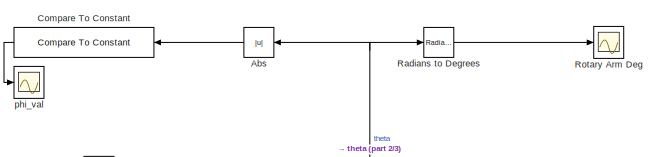
[diagram: root canvas - part 1/3, top right region]
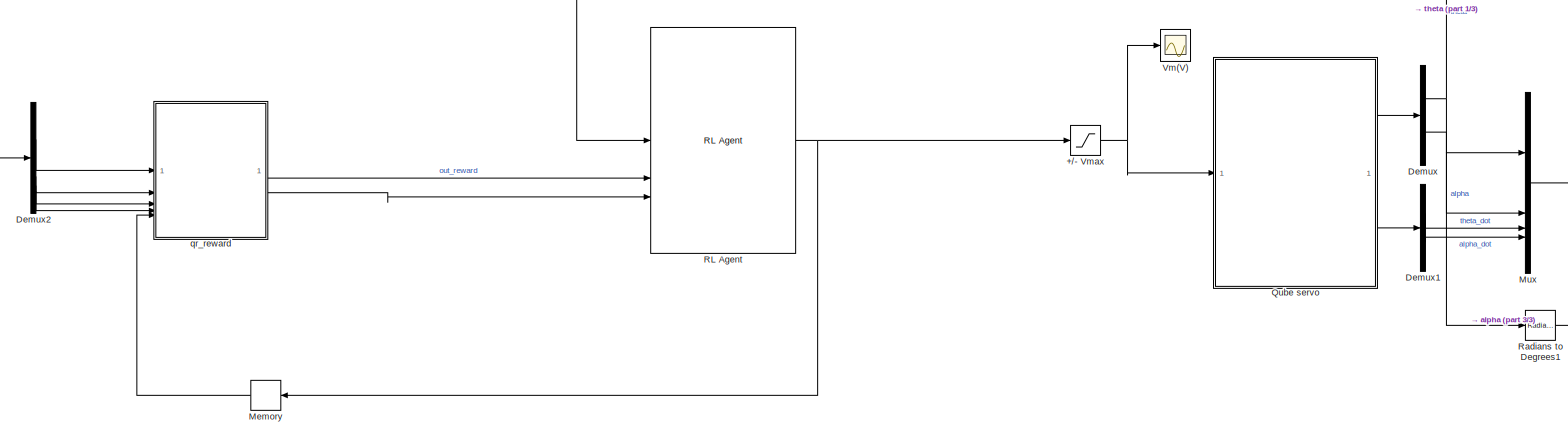
[diagram: root canvas - part 2/3, full width, middle band]
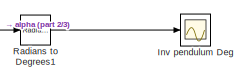
[diagram: root canvas - part 3/3, bottom right region]
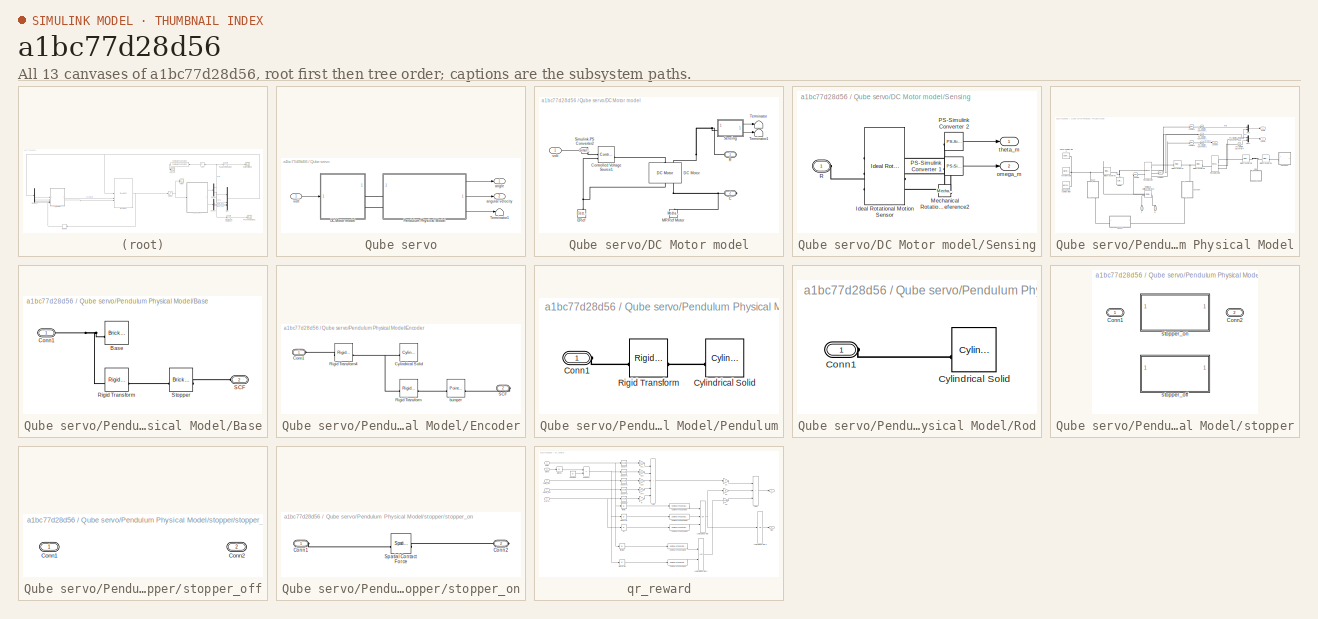
[diagram: thumbnail index - all 13 canvases of the model, root first then tree order]
MODEL slx_a1bc77d28d56
KIND model
CONFIG AbsTol = auto
CONFIG EnableMultiTasking = off
CONFIG FixedStep = auto
CONFIG MaxStep = auto
CONFIG MinStep = auto
CONFIG RelTol = 1e-3
CONFIG SampleTimeConstraint = Unconstrained
CONFIG SolverName = VariableStepAuto
CONFIG StartTime = 0.0
CONFIG StopTime = 10.0
BLOCK [Saturate] +//- Vmax
  LowerLimit = -Vmax
  UpperLimit = Vmax
BLOCK [Abs] Abs
  SaturateOnIntegerOverflow = off
BLOCK [Reference] Compare To Constant  REF=simulink/Logic and Bit
Operations/Compare
To Constant
  SourceBlock = simulink/Logic and Bit\nOperations/Compare\nTo Constant
  SourceType = Compare To Constant
BLOCK [Demux] Demux
  Outputs = 2
BLOCK [Demux] Demux1
  Outputs = 2
BLOCK [Demux] Demux2
BLOCK [Scope] Inv pendulum Deg
  Floating = off
  NumInputPorts = 1
  ScopeSpecificationString = Simulink.scopes.TimeScopeBlockCfg('CurrentConfiguration', extmgr.ConfigurationSet(extmgr.Configuration('Core','General UI',true),extmgr.Configuration('Core','Source UI',true),extmgr.Configuration('Sources','WiredSimulink',true,'DataLoggingVariableName','ScopeData1'),extmgr.Configuration('Visuals','Time Domain',true,'SerializedDisplays',{struct('MinYLimReal','112.10725','MaxYLimReal','139.96479','Y...<+1439ch>
BLOCK [Memory] Memory
BLOCK [Mux] Mux
  DisplayOption = bar
BLOCK [SubSystem] Qube servo
BLOCK [SubSystem] Qube servo/DC Motor model
BLOCK [PMIOPort] Qube servo/DC Motor model/C
  Port = 2
  Side = Right
BLOCK [Reference] Qube servo/DC Motor model/Controlled Voltage Source1  REF=fl_lib/Electrical/Electrical Sources/Controlled Voltage
Source
  SourceBlock = fl_lib/Electrical/Electrical Sources/Controlled Voltage\nSource
  SourceType = Controlled Voltage\nSource
BLOCK [Reference] Qube servo/DC Motor model/DC Motor  REF=ee_lib/Electromechanical/Brushed Motors/DC Motor
  NameLocation = left
  SourceBlock = ee_lib/Electromechanical/Brushed Motors/DC Motor
  SourceType = DC Motor
BLOCK [Reference] Qube servo/DC Motor model/ERef  REF=fl_lib/Electrical/Electrical Elements/Electrical Reference
  NameLocation = right
  SourceBlock = fl_lib/Electrical/Electrical Elements/Electrical Reference
  SourceType = Electrical Reference
BLOCK [Reference] Qube servo/DC Motor model/MRRef Motor  REF=fl_lib/Mechanical/Rotational Elements/Mechanical
Rotational Reference
  NameLocation = left
  SourceBlock = fl_lib/Mechanical/Rotational Elements/Mechanical\nRotational Reference
  SourceType = Mechanical\nRotational Reference
BLOCK [PMIOPort] Qube servo/DC Motor model/R
  Side = Right
BLOCK [SubSystem] Qube servo/DC Motor model/Sensing
BLOCK [Reference] Qube servo/DC Motor model/Sensing/Ideal Rotational Motion Sensor  REF=fl_lib/Mechanical/Mechanical Sensors/Ideal Rotational
Motion Sensor
  NameLocation = top
  SourceBlock = fl_lib/Mechanical/Mechanical Sensors/Ideal Rotational\nMotion Sensor
  SourceType = Ideal Rotational\nMotion Sensor
BLOCK [Reference] Qube servo/DC Motor model/Sensing/Mechanical Rotational Reference2  REF=fl_lib/Mechanical/Rotational Elements/Mechanical
Rotational Reference
  SourceBlock = fl_lib/Mechanical/Rotational Elements/Mechanical\nRotational Reference
  SourceType = Mechanical\nRotational Reference
BLOCK [Reference] Qube servo/DC Motor model/Sensing/PS-Simulink Converter 1  REF=nesl_utility/PS-Simulink
Converter
  SourceBlock = nesl_utility/PS-Simulink\nConverter
  SourceType = PS-Simulink\nConverter
BLOCK [Reference] Qube servo/DC Motor model/Sensing/PS-Simulink Converter 2  REF=nesl_utility/PS-Simulink
Converter
  SourceBlock = nesl_utility/PS-Simulink\nConverter
  SourceType = PS-Simulink\nConverter
BLOCK [PMIOPort] Qube servo/DC Motor model/Sensing/R
  NameLocation = top
  Side = Left
BLOCK [Outport] Qube servo/DC Motor model/Sensing/omega_m
  Port = 2
  VectorParamsAs1DForOutWhenUnconnected = off
BLOCK [Outport] Qube servo/DC Motor model/Sensing/theta_m
  VectorParamsAs1DForOutWhenUnconnected = off
BLOCK [Reference] Qube servo/DC Motor model/Simulink-PS Converter2  REF=nesl_utility/Simulink-PS
Converter
  SourceBlock = nesl_utility/Simulink-PS\nConverter
  SourceType = Simulink-PS\nConverter
BLOCK [Terminator] Qube servo/DC Motor model/Terminator
BLOCK [Terminator] Qube servo/DC Motor model/Terminator1
BLOCK [Inport] Qube servo/DC Motor model/volt
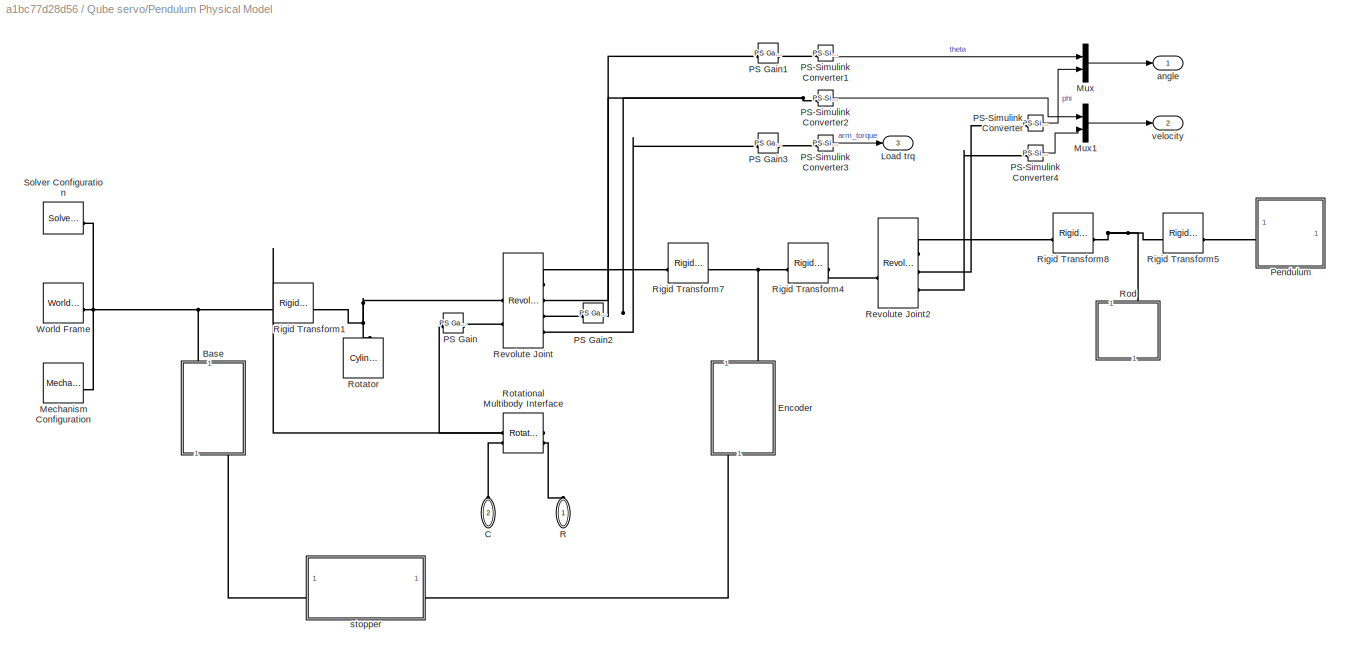
BLOCK [SubSystem] Qube servo/Pendulum Physical Model
BLOCK [SubSystem] Qube servo/Pendulum Physical Model/Base
  NameLocation = left
BLOCK [Reference] Qube servo/Pendulum Physical Model/Base/Base  REF=sm_lib/Body Elements/Brick Solid
  NameLocation = top
  SourceBlock = sm_lib/Body Elements/Brick Solid
  SourceType = Brick Solid
BLOCK [PMIOPort] Qube servo/Pendulum Physical Model/Base/Conn1
  NameLocation = top
  Side = Right
BLOCK [Reference] Qube servo/Pendulum Physical Model/Base/Rigid Transform  REF=sm_lib/Frames and
Transforms/Rigid
Transform
  SourceBlock = sm_lib/Frames and\nTransforms/Rigid\nTransform
  SourceType = Rigid\nTransform
BLOCK [PMIOPort] Qube servo/Pendulum Physical Model/Base/SCF
  Port = 2
  Side = Left
BLOCK [Reference] Qube servo/Pendulum Physical Model/Base/Stopper  REF=sm_lib/Body Elements/Brick Solid
  SourceBlock = sm_lib/Body Elements/Brick Solid
  SourceType = Brick Solid
BLOCK [PMIOPort] Qube servo/Pendulum Physical Model/C
  NameLocation = left
  Port = 2
  Side = Left
BLOCK [SubSystem] Qube servo/Pendulum Physical Model/Encoder
  NameLocation = left
BLOCK [PMIOPort] Qube servo/Pendulum Physical Model/Encoder/Conn1
  Side = Left
BLOCK [Reference] Qube servo/Pendulum Physical Model/Encoder/Cylindrical Solid  REF=sm_lib/Body Elements/Cylindrical Solid
  NameLocation = top
  SourceBlock = sm_lib/Body Elements/Cylindrical Solid
  SourceType = Cylindrical Solid
BLOCK [Reference] Qube servo/Pendulum Physical Model/Encoder/Rigid Transform  REF=sm_lib/Frames and
Transforms/Rigid
Transform
  SourceBlock = sm_lib/Frames and\nTransforms/Rigid\nTransform
  SourceType = Rigid\nTransform
BLOCK [Reference] Qube servo/Pendulum Physical Model/Encoder/Rigid Transform4  REF=sm_lib/Frames and
Transforms/Rigid
Transform
  SourceBlock = sm_lib/Frames and\nTransforms/Rigid\nTransform
  SourceType = Rigid\nTransform
BLOCK [PMIOPort] Qube servo/Pendulum Physical Model/Encoder/SCF
  Port = 2
  Side = Right
BLOCK [Reference] Qube servo/Pendulum Physical Model/Encoder/bumper  REF=sm_lib/Curves and Surfaces/Point Cloud
  SourceBlock = sm_lib/Curves and Surfaces/Point Cloud
  SourceType = Point Cloud
BLOCK [Outport] Qube servo/Pendulum Physical Model/Load trq
  Port = 3
BLOCK [Reference] Qube servo/Pendulum Physical Model/Mechanism Configuration  REF=sm_lib/Utilities/Mechanism
Configuration
  SourceBlock = sm_lib/Utilities/Mechanism\nConfiguration
  SourceType = Mechanism\nConfiguration
BLOCK [Mux] Qube servo/Pendulum Physical Model/Mux
  DisplayOption = bar
  Inputs = 2
BLOCK [Mux] Qube servo/Pendulum Physical Model/Mux1
  DisplayOption = bar
  Inputs = 2
BLOCK [Reference] Qube servo/Pendulum Physical Model/PS Gain  REF=fl_lib/Physical Signals/Functions/PS Gain
  SourceBlock = fl_lib/Physical Signals/Functions/PS Gain
  SourceType = PS Gain
BLOCK [Reference] Qube servo/Pendulum Physical Model/PS Gain1  REF=fl_lib/Physical Signals/Functions/PS Gain
  SourceBlock = fl_lib/Physical Signals/Functions/PS Gain
  SourceType = PS Gain
BLOCK [Reference] Qube servo/Pendulum Physical Model/PS Gain2  REF=fl_lib/Physical Signals/Functions/PS Gain
  SourceBlock = fl_lib/Physical Signals/Functions/PS Gain
  SourceType = PS Gain
BLOCK [Reference] Qube servo/Pendulum Physical Model/PS Gain3  REF=fl_lib/Physical Signals/Functions/PS Gain
  SourceBlock = fl_lib/Physical Signals/Functions/PS Gain
  SourceType = PS Gain
BLOCK [Reference] Qube servo/Pendulum Physical Model/PS-Simulink Converter  REF=nesl_utility/PS-Simulink
Converter
  SourceBlock = nesl_utility/PS-Simulink\nConverter
  SourceType = PS-Simulink\nConverter
BLOCK [Reference] Qube servo/Pendulum Physical Model/PS-Simulink Converter1  REF=nesl_utility/PS-Simulink
Converter
  SourceBlock = nesl_utility/PS-Simulink\nConverter
  SourceType = PS-Simulink\nConverter
BLOCK [Reference] Qube servo/Pendulum Physical Model/PS-Simulink Converter2  REF=nesl_utility/PS-Simulink
Converter
  SourceBlock = nesl_utility/PS-Simulink\nConverter
  SourceType = PS-Simulink\nConverter
BLOCK [Reference] Qube servo/Pendulum Physical Model/PS-Simulink Converter3  REF=nesl_utility/PS-Simulink
Converter
  SourceBlock = nesl_utility/PS-Simulink\nConverter
  SourceType = PS-Simulink\nConverter
BLOCK [Reference] Qube servo/Pendulum Physical Model/PS-Simulink Converter4  REF=nesl_utility/PS-Simulink
Converter
  SourceBlock = nesl_utility/PS-Simulink\nConverter
  SourceType = PS-Simulink\nConverter
BLOCK [SubSystem] Qube servo/Pendulum Physical Model/Pendulum
BLOCK [PMIOPort] Qube servo/Pendulum Physical Model/Pendulum/Conn1
  Side = Left
BLOCK [Reference] Qube servo/Pendulum Physical Model/Pendulum/Cylindrical Solid  REF=sm_lib/Body Elements/Cylindrical Solid
  NameLocation = top
  SourceBlock = sm_lib/Body Elements/Cylindrical Solid
  SourceType = Cylindrical Solid
BLOCK [Reference] Qube servo/Pendulum Physical Model/Pendulum/Rigid Transform  REF=sm_lib/Frames and
Transforms/Rigid
Transform
  SourceBlock = sm_lib/Frames and\nTransforms/Rigid\nTransform
  SourceType = Rigid\nTransform
BLOCK [PMIOPort] Qube servo/Pendulum Physical Model/R
  NameLocation = left
  Side = Left
BLOCK [Reference] Qube servo/Pendulum Physical Model/Revolute Joint  REF=sm_lib/Joints/Revolute Joint
  SourceBlock = sm_lib/Joints/Revolute Joint
  SourceType = Revolute Joint
BLOCK [Reference] Qube servo/Pendulum Physical Model/Revolute Joint2  REF=sm_lib/Joints/Revolute Joint
  SourceBlock = sm_lib/Joints/Revolute Joint
  SourceType = Revolute Joint
BLOCK [Reference] Qube servo/Pendulum Physical Model/Rigid Transform1  REF=sm_lib/Frames and
Transforms/Rigid
Transform
  SourceBlock = sm_lib/Frames and\nTransforms/Rigid\nTransform
  SourceType = Rigid\nTransform
BLOCK [Reference] Qube servo/Pendulum Physical Model/Rigid Transform4  REF=sm_lib/Frames and
Transforms/Rigid
Transform
  SourceBlock = sm_lib/Frames and\nTransforms/Rigid\nTransform
  SourceType = Rigid\nTransform
BLOCK [Reference] Qube servo/Pendulum Physical Model/Rigid Transform5  REF=sm_lib/Frames and
Transforms/Rigid
Transform
  SourceBlock = sm_lib/Frames and\nTransforms/Rigid\nTransform
  SourceType = Rigid\nTransform
BLOCK [Reference] Qube servo/Pendulum Physical Model/Rigid Transform7  REF=sm_lib/Frames and
Transforms/Rigid
Transform
  SourceBlock = sm_lib/Frames and\nTransforms/Rigid\nTransform
  SourceType = Rigid\nTransform
BLOCK [Reference] Qube servo/Pendulum Physical Model/Rigid Transform8  REF=sm_lib/Frames and
Transforms/Rigid
Transform
  SourceBlock = sm_lib/Frames and\nTransforms/Rigid\nTransform
  SourceType = Rigid\nTransform
BLOCK [SubSystem] Qube servo/Pendulum Physical Model/Rod
BLOCK [PMIOPort] Qube servo/Pendulum Physical Model/Rod/Conn1
  Side = Left
BLOCK [Reference] Qube servo/Pendulum Physical Model/Rod/Cylindrical Solid  REF=sm_lib/Body Elements/Cylindrical Solid
  NameLocation = top
  SourceBlock = sm_lib/Body Elements/Cylindrical Solid
  SourceType = Cylindrical Solid
BLOCK [Reference] Qube servo/Pendulum Physical Model/Rotational Multibody Interface  REF=fl_lib/Mechanical/Multibody Interfaces/Rotational Multibody
Interface
  SourceBlock = fl_lib/Mechanical/Multibody Interfaces/Rotational Multibody\nInterface
  SourceType = Rotational Multibody\nInterface
BLOCK [Reference] Qube servo/Pendulum Physical Model/Rotator  REF=sm_lib/Body Elements/Cylindrical Solid
  NameLocation = right
  SourceBlock = sm_lib/Body Elements/Cylindrical Solid
  SourceType = Cylindrical Solid
BLOCK [Reference] Qube servo/Pendulum Physical Model/Solver Configuration  REF=nesl_utility/Solver
Configuration
  SourceBlock = nesl_utility/Solver\nConfiguration
  SourceType = Solver\nConfiguration
BLOCK [Reference] Qube servo/Pendulum Physical Model/World Frame  REF=sm_lib/Frames and
Transforms/World Frame
  SourceBlock = sm_lib/Frames and\nTransforms/World Frame
  SourceType = World Frame
BLOCK [Outport] Qube servo/Pendulum Physical Model/angle
BLOCK [SubSystem] Qube servo/Pendulum Physical Model/stopper
  LabelModeActiveChoice = Choice_Qube_Stopper_Off
  Variant = on
  VariantControl = Choice
  VariantControlMode = label
BLOCK [PMIOPort] Qube servo/Pendulum Physical Model/stopper/Conn1
  Side = Left
BLOCK [PMIOPort] Qube servo/Pendulum Physical Model/stopper/Conn2
  Port = 2
  Side = Right
BLOCK [SubSystem] Qube servo/Pendulum Physical Model/stopper/stopper_off
  VariantControl = Choice_Qube_Stopper_Off
BLOCK [PMIOPort] Qube servo/Pendulum Physical Model/stopper/stopper_off/Conn1
  Side = Left
BLOCK [PMIOPort] Qube servo/Pendulum Physical Model/stopper/stopper_off/Conn2
  Port = 2
  Side = Right
BLOCK [SubSystem] Qube servo/Pendulum Physical Model/stopper/stopper_on
  VariantControl = Choice_Qube_Stopper_On
BLOCK [PMIOPort] Qube servo/Pendulum Physical Model/stopper/stopper_on/Conn1
  Side = Left
BLOCK [PMIOPort] Qube servo/Pendulum Physical Model/stopper/stopper_on/Conn2
  Port = 2
  Side = Right
BLOCK [Reference] Qube servo/Pendulum Physical Model/stopper/stopper_on/Spatial Contact Force  REF=sm_lib/Forces and
Torques/Spatial
Contact Force
  SourceBlock = sm_lib/Forces and\nTorques/Spatial\nContact Force
  SourceType = Spatial\nContact Force
BLOCK [Outport] Qube servo/Pendulum Physical Model/velocity
  Port = 2
BLOCK [Terminator] Qube servo/Terminator1
BLOCK [Outport] Qube servo/angle
BLOCK [Outport] Qube servo/angular velocity
  Port = 2
BLOCK [Inport] Qube servo/volt
BLOCK [Reference] RL Agent  REF=rllib/RL Agent
  SourceBlock = rllib/RL Agent
  SourceType = RL Agent
BLOCK [Reference] Radians to Degrees  REF=simulink_extras/Transformations/Radians
to Degrees
  SourceBlock = simulink_extras/Transformations/Radians\nto Degrees
  SourceType = RadiansToDegrees
BLOCK [Reference] Radians to Degrees1  REF=simulink_extras/Transformations/Radians
to Degrees
  SourceBlock = simulink_extras/Transformations/Radians\nto Degrees
  SourceType = RadiansToDegrees
BLOCK [Scope] Rotary Arm Deg
  Floating = off
  NumInputPorts = 1
  ScopeSpecificationString = Simulink.scopes.TimeScopeBlockCfg('CurrentConfiguration', extmgr.ConfigurationSet(extmgr.Configuration('Core','General UI',true),extmgr.Configuration('Core','Source UI',true),extmgr.Configuration('Sources','WiredSimulink',true),extmgr.Configuration('Visuals','Time Domain',true,'SerializedDisplays',{struct('MinYLimReal','-13.88536','MaxYLimReal','-9.40845','YLabelReal','','MinYLimMag','0.00000','Ma...<+1396ch>
BLOCK [Scope] Vm(V)
  Floating = off
  NumInputPorts = 1
  ScopeSpecificationString = Simulink.scopes.TimeScopeBlockCfg('CurrentConfiguration', extmgr.ConfigurationSet(extmgr.Configuration('Core','General UI',true),extmgr.Configuration('Core','Source UI',true),extmgr.Configuration('Sources','WiredSimulink',true,'DataLoggingVariableName','ScopeData2'),extmgr.Configuration('Visuals','Time Domain',true,'SerializedDisplays',{struct('MinYLimReal','-12.35852','MaxYLimReal','12.48426','YL...<+1373ch>
BLOCK [Scope] phi_val
  Floating = off
  NumInputPorts = 1
  ScopeSpecificationString = Simulink.scopes.TimeScopeBlockCfg('CurrentConfiguration', extmgr.ConfigurationSet(extmgr.Configuration('Core','General UI',true),extmgr.Configuration('Core','Source UI',true),extmgr.Configuration('Sources','WiredSimulink',true,'DataLoggingVariableName','ScopeData1'),extmgr.Configuration('Visuals','Time Domain',true,'SerializedDisplays',{struct('MinYLimReal','-0.125','MaxYLimReal','1.125','YLabelRe...<+1366ch>
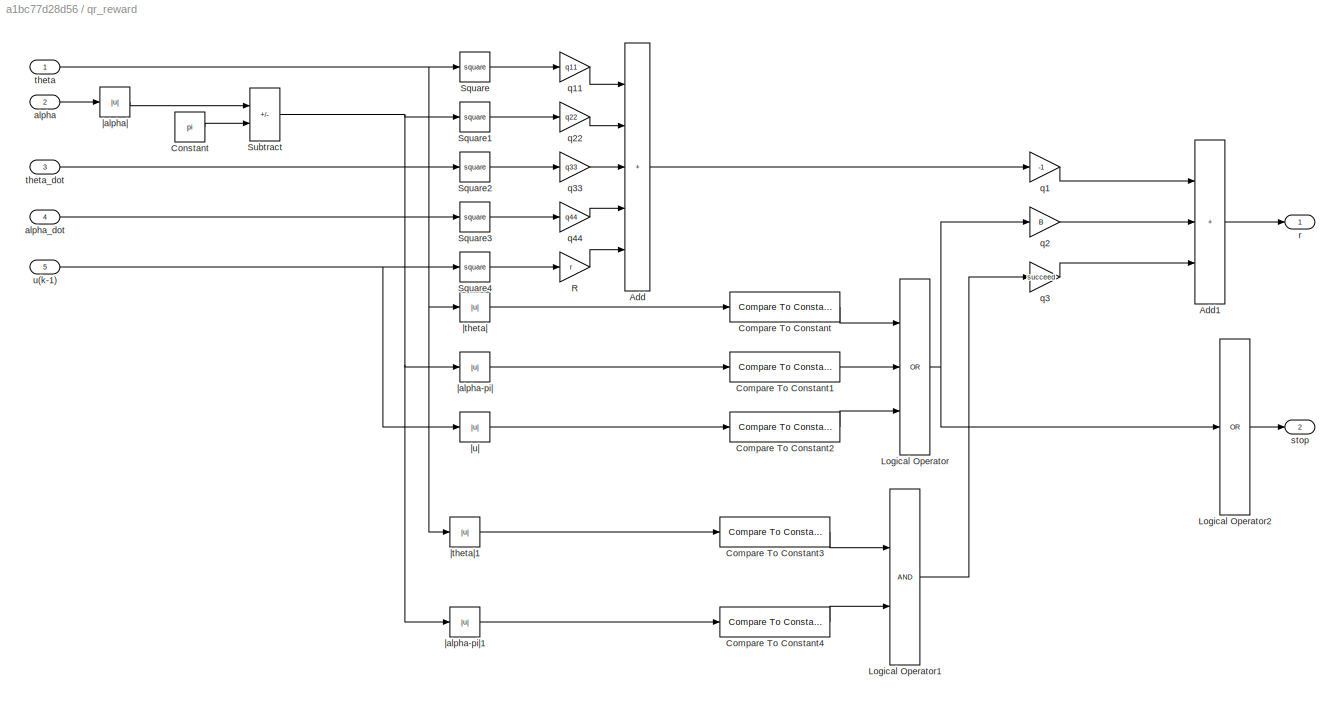
BLOCK [SubSystem] qr_reward
BLOCK [Sum] qr_reward/Add
  IconShape = rectangular
  Inputs = +++++
BLOCK [Sum] qr_reward/Add1
  IconShape = rectangular
  Inputs = +++
BLOCK [Reference] qr_reward/Compare To Constant  REF=simulink/Logic and Bit
Operations/Compare
To Constant
  SourceBlock = simulink/Logic and Bit\nOperations/Compare\nTo Constant
  SourceType = Compare To Constant
BLOCK [Reference] qr_reward/Compare To Constant1  REF=simulink/Logic and Bit
Operations/Compare
To Constant
  SourceBlock = simulink/Logic and Bit\nOperations/Compare\nTo Constant
  SourceType = Compare To Constant
BLOCK [Reference] qr_reward/Compare To Constant2  REF=simulink/Logic and Bit
Operations/Compare
To Constant
  SourceBlock = simulink/Logic and Bit\nOperations/Compare\nTo Constant
  SourceType = Compare To Constant
BLOCK [Reference] qr_reward/Compare To Constant3  REF=simulink/Logic and Bit
Operations/Compare
To Constant
  SourceBlock = simulink/Logic and Bit\nOperations/Compare\nTo Constant
  SourceType = Compare To Constant
BLOCK [Reference] qr_reward/Compare To Constant4  REF=simulink/Logic and Bit
Operations/Compare
To Constant
  SourceBlock = simulink/Logic and Bit\nOperations/Compare\nTo Constant
  SourceType = Compare To Constant
BLOCK [Constant] qr_reward/Constant
  Value = pi
BLOCK [Logic] qr_reward/Logical Operator
  AllPortsSameDT = off
  Inputs = 3
  Operator = OR
  OutDataTypeStr = boolean
BLOCK [Logic] qr_reward/Logical Operator1
  AllPortsSameDT = off
  OutDataTypeStr = boolean
BLOCK [Logic] qr_reward/Logical Operator2
  AllPortsSameDT = off
  Inputs = 1
  Operator = OR
  OutDataTypeStr = boolean
BLOCK [Gain] qr_reward/R
  Gain = r
BLOCK [Math] qr_reward/Square
  Operator = square
BLOCK [Math] qr_reward/Square1
  Operator = square
BLOCK [Math] qr_reward/Square2
  Operator = square
BLOCK [Math] qr_reward/Square3
  Operator = square
BLOCK [Math] qr_reward/Square4
  Operator = square
BLOCK [Sum] qr_reward/Subtract
  IconShape = rectangular
  Inputs = +-
BLOCK [Inport] qr_reward/alpha
  Port = 2
BLOCK [Inport] qr_reward/alpha_dot
  Port = 4
BLOCK [Gain] qr_reward/q1
  Gain = -1
BLOCK [Gain] qr_reward/q11
  Gain = q11
BLOCK [Gain] qr_reward/q2
  Gain = B
BLOCK [Gain] qr_reward/q22
  Gain = q22
BLOCK [Gain] qr_reward/q3
  Gain = succeed
BLOCK [Gain] qr_reward/q33
  Gain = q33
BLOCK [Gain] qr_reward/q44
  Gain = q44
BLOCK [Outport] qr_reward/r
BLOCK [Outport] qr_reward/stop
  Port = 2
BLOCK [Inport] qr_reward/theta
BLOCK [Inport] qr_reward/theta_dot
  Port = 3
BLOCK [Inport] qr_reward/u(k-1)
  Port = 5
BLOCK [Abs] qr_reward/|alpha-pi|
  SaturateOnIntegerOverflow = off
BLOCK [Abs] qr_reward/|alpha-pi|1
  SaturateOnIntegerOverflow = off
BLOCK [Abs] qr_reward/|alpha|
  SaturateOnIntegerOverflow = off
BLOCK [Abs] qr_reward/|theta|
  SaturateOnIntegerOverflow = off
BLOCK [Abs] qr_reward/|theta|1
  SaturateOnIntegerOverflow = off
BLOCK [Abs] qr_reward/|u|
  SaturateOnIntegerOverflow = off
NET +//- Vmax:1 -> Qube servo:1, Vm(V):1
LINE Abs:1 -> Compare To Constant:1
LINE Compare To Constant:1 -> phi_val:1
LINE Demux1:1 -> Mux:3
LINE Demux1:2 -> Mux:4
LINE Demux2:1 -> qr_reward:1
LINE Demux2:2 -> qr_reward:2
LINE Demux2:3 -> qr_reward:3
LINE Demux2:4 -> qr_reward:4
NET Demux:1 -> Abs:1, Mux:1, Radians to Degrees:1
NET Demux:2 -> Mux:2, Radians to Degrees1:1
LINE Memory:1 -> qr_reward:5
NET Mux:1 -> Demux2:1, RL Agent:1
LINE Qube servo/DC Motor model/Sensing/PS-Simulink Converter 1:1 -> Qube servo/DC Motor model/Sensing/omega_m:1
LINE Qube servo/DC Motor model/Sensing/PS-Simulink Converter 2:1 -> Qube servo/DC Motor model/Sensing/theta_m:1
LINE Qube servo/DC Motor model/Sensing:1 -> Qube servo/DC Motor model/Terminator:1
LINE Qube servo/DC Motor model/Sensing:2 -> Qube servo/DC Motor model/Terminator1:1
LINE Qube servo/DC Motor model/volt:1 -> Qube servo/DC Motor model/Simulink-PS Converter2:1
LINE Qube servo/Pendulum Physical Model/Mux1:1 -> Qube servo/Pendulum Physical Model/velocity:1
LINE Qube servo/Pendulum Physical Model/Mux:1 -> Qube servo/Pendulum Physical Model/angle:1
LINE Qube servo/Pendulum Physical Model/PS-Simulink Converter1:1 -> Qube servo/Pendulum Physical Model/Mux:1
LINE Qube servo/Pendulum Physical Model/PS-Simulink Converter2:1 -> Qube servo/Pendulum Physical Model/Mux1:1
LINE Qube servo/Pendulum Physical Model/PS-Simulink Converter3:1 -> Qube servo/Pendulum Physical Model/Load trq:1
LINE Qube servo/Pendulum Physical Model/PS-Simulink Converter4:1 -> Qube servo/Pendulum Physical Model/Mux1:2
LINE Qube servo/Pendulum Physical Model/PS-Simulink Converter:1 -> Qube servo/Pendulum Physical Model/Mux:2
LINE Qube servo/Pendulum Physical Model:1 -> Qube servo/angle:1
LINE Qube servo/Pendulum Physical Model:2 -> Qube servo/angular velocity:1
LINE Qube servo/Pendulum Physical Model:3 -> Qube servo/Terminator1:1
LINE Qube servo/volt:1 -> Qube servo/DC Motor model:1
LINE Qube servo:1 -> Demux:1
LINE Qube servo:2 -> Demux1:1
NET RL Agent:1 -> +//- Vmax:1, Memory:1
LINE Radians to Degrees1:1 -> Inv pendulum Deg:1
LINE Radians to Degrees:1 -> Rotary Arm Deg:1
LINE qr_reward/Add1:1 -> qr_reward/r:1
LINE qr_reward/Add:1 -> qr_reward/q1:1
LINE qr_reward/Compare To Constant1:1 -> qr_reward/Logical Operator:2
LINE qr_reward/Compare To Constant2:1 -> qr_reward/Logical Operator:3
LINE qr_reward/Compare To Constant3:1 -> qr_reward/Logical Operator1:1
LINE qr_reward/Compare To Constant4:1 -> qr_reward/Logical Operator1:2
LINE qr_reward/Compare To Constant:1 -> qr_reward/Logical Operator:1
LINE qr_reward/Constant:1 -> qr_reward/Subtract:2
LINE qr_reward/Logical Operator1:1 -> qr_reward/q3:1
LINE qr_reward/Logical Operator2:1 -> qr_reward/stop:1
NET qr_reward/Logical Operator:1 -> qr_reward/Logical Operator2:1, qr_reward/q2:1
LINE qr_reward/R:1 -> qr_reward/Add:5
LINE qr_reward/Square1:1 -> qr_reward/q22:1
LINE qr_reward/Square2:1 -> qr_reward/q33:1
LINE qr_reward/Square3:1 -> qr_reward/q44:1
LINE qr_reward/Square4:1 -> qr_reward/R:1
LINE qr_reward/Square:1 -> qr_reward/q11:1
NET qr_reward/Subtract:1 -> qr_reward/Square1:1, qr_reward/|alpha-pi|1:1, qr_reward/|alpha-pi|:1
LINE qr_reward/alpha:1 -> qr_reward/|alpha|:1
LINE qr_reward/alpha_dot:1 -> qr_reward/Square3:1
LINE qr_reward/q11:1 -> qr_reward/Add:1
LINE qr_reward/q1:1 -> qr_reward/Add1:1
LINE qr_reward/q22:1 -> qr_reward/Add:2
LINE qr_reward/q2:1 -> qr_reward/Add1:2
LINE qr_reward/q33:1 -> qr_reward/Add:3
LINE qr_reward/q3:1 -> qr_reward/Add1:3
LINE qr_reward/q44:1 -> qr_reward/Add:4
NET qr_reward/theta:1 -> qr_reward/Square:1, qr_reward/|theta|1:1, qr_reward/|theta|:1
LINE qr_reward/theta_dot:1 -> qr_reward/Square2:1
NET qr_reward/u(k-1):1 -> qr_reward/Square4:1, qr_reward/|u|:1
LINE qr_reward/|alpha-pi|1:1 -> qr_reward/Compare To Constant4:1
LINE qr_reward/|alpha-pi|:1 -> qr_reward/Compare To Constant1:1
LINE qr_reward/|alpha|:1 -> qr_reward/Subtract:1
LINE qr_reward/|theta|1:1 -> qr_reward/Compare To Constant3:1
LINE qr_reward/|theta|:1 -> qr_reward/Compare To Constant:1
LINE qr_reward/|u|:1 -> qr_reward/Compare To Constant2:1
LINE qr_reward:1 -> RL Agent:2
LINE qr_reward:2 -> RL Agent:3
PNET net1: Qube servo/DC Motor model/C:RConn1 -- Qube servo/DC Motor model/DC Motor:RConn2 -- Qube servo/DC Motor model/MRRef Motor:LConn1
PLINE Qube servo/DC Motor model/Controlled Voltage Source1:LConn1 -- Qube servo/DC Motor model/DC Motor:LConn1
PLINE Qube servo/DC Motor model/Controlled Voltage Source1:RConn1 -- Qube servo/DC Motor model/Simulink-PS Converter2:RConn1
PNET net2: Qube servo/DC Motor model/Controlled Voltage Source1:RConn2 -- Qube servo/DC Motor model/DC Motor:RConn1 -- Qube servo/DC Motor model/ERef:LConn1
PNET net3: Qube servo/DC Motor model/DC Motor:LConn2 -- Qube servo/DC Motor model/R:RConn1 -- Qube servo/DC Motor model/Sensing:LConn1
PLINE Qube servo/DC Motor model/Sensing/Ideal Rotational Motion Sensor:LConn1 -- Qube servo/DC Motor model/Sensing/R:RConn1
PLINE Qube servo/DC Motor model/Sensing/Ideal Rotational Motion Sensor:RConn1 -- Qube servo/DC Motor model/Sensing/Mechanical Rotational Reference2:LConn1
PLINE Qube servo/DC Motor model/Sensing/Ideal Rotational Motion Sensor:RConn2 -- Qube servo/DC Motor model/Sensing/PS-Simulink Converter 1:LConn1
PLINE Qube servo/DC Motor model/Sensing/Ideal Rotational Motion Sensor:RConn3 -- Qube servo/DC Motor model/Sensing/PS-Simulink Converter 2:LConn1
PLINE Qube servo/DC Motor model:RConn1 -- Qube servo/Pendulum Physical Model:LConn1
PLINE Qube servo/DC Motor model:RConn2 -- Qube servo/Pendulum Physical Model:LConn2
PNET net4: Qube servo/Pendulum Physical Model/Base/Base:RConn1 -- Qube servo/Pendulum Physical Model/Base/Conn1:RConn1 -- Qube servo/Pendulum Physical Model/Base/Rigid Transform:LConn1
PLINE Qube servo/Pendulum Physical Model/Base/Rigid Transform:RConn1 -- Qube servo/Pendulum Physical Model/Base/Stopper:RConn1
PLINE Qube servo/Pendulum Physical Model/Base/SCF:RConn1 -- Qube servo/Pendulum Physical Model/Base/Stopper:LConn1
PLINE Qube servo/Pendulum Physical Model/Base:LConn1 -- Qube servo/Pendulum Physical Model/stopper:LConn1
PNET net5: Qube servo/Pendulum Physical Model/Base:RConn1 -- Qube servo/Pendulum Physical Model/Mechanism Configuration:RConn1 -- Qube servo/Pendulum Physical Model/Rigid Transform1:LConn1 -- Qube servo/Pendulum Physical Model/Solver Configuration:RConn1 -- Qube servo/Pendulum Physical Model/World Frame:RConn1
PLINE Qube servo/Pendulum Physical Model/C:RConn1 -- Qube servo/Pendulum Physical Model/Rotational Multibody Interface:LConn2
PLINE Qube servo/Pendulum Physical Model/Encoder/Conn1:RConn1 -- Qube servo/Pendulum Physical Model/Encoder/Rigid Transform4:LConn1
PNET net6: Qube servo/Pendulum Physical Model/Encoder/Cylindrical Solid:RConn1 -- Qube servo/Pendulum Physical Model/Encoder/Rigid Transform4:RConn1 -- Qube servo/Pendulum Physical Model/Encoder/Rigid Transform:LConn1
PLINE Qube servo/Pendulum Physical Model/Encoder/Rigid Transform:RConn1 -- Qube servo/Pendulum Physical Model/Encoder/bumper:LConn1
PLINE Qube servo/Pendulum Physical Model/Encoder/SCF:RConn1 -- Qube servo/Pendulum Physical Model/Encoder/bumper:RConn1
PNET net7: Qube servo/Pendulum Physical Model/Encoder:LConn1 -- Qube servo/Pendulum Physical Model/Rigid Transform4:LConn1 -- Qube servo/Pendulum Physical Model/Rigid Transform7:RConn1
PLINE Qube servo/Pendulum Physical Model/Encoder:RConn1 -- Qube servo/Pendulum Physical Model/stopper:RConn1
PLINE Qube servo/Pendulum Physical Model/PS Gain1:LConn1 -- Qube servo/Pendulum Physical Model/Revolute Joint:RConn2
PLINE Qube servo/Pendulum Physical Model/PS Gain1:RConn1 -- Qube servo/Pendulum Physical Model/PS-Simulink Converter1:LConn1
PLINE Qube servo/Pendulum Physical Model/PS Gain2:LConn1 -- Qube servo/Pendulum Physical Model/Revolute Joint:RConn3
PNET net8: Qube servo/Pendulum Physical Model/PS Gain2:RConn1 -- Qube servo/Pendulum Physical Model/PS-Simulink Converter2:LConn1 -- Qube servo/Pendulum Physical Model/Rotational Multibody Interface:RConn1
PLINE Qube servo/Pendulum Physical Model/PS Gain3:LConn1 -- Qube servo/Pendulum Physical Model/Revolute Joint:RConn4
PLINE Qube servo/Pendulum Physical Model/PS Gain3:RConn1 -- Qube servo/Pendulum Physical Model/PS-Simulink Converter3:LConn1
PLINE Qube servo/Pendulum Physical Model/PS Gain:LConn1 -- Qube servo/Pendulum Physical Model/Rotational Multibody Interface:LConn1
PLINE Qube servo/Pendulum Physical Model/PS Gain:RConn1 -- Qube servo/Pendulum Physical Model/Revolute Joint:LConn2
PLINE Qube servo/Pendulum Physical Model/PS-Simulink Converter4:LConn1 -- Qube servo/Pendulum Physical Model/Revolute Joint2:RConn3
PLINE Qube servo/Pendulum Physical Model/PS-Simulink Converter:LConn1 -- Qube servo/Pendulum Physical Model/Revolute Joint2:RConn2
PLINE Qube servo/Pendulum Physical Model/Pendulum/Conn1:RConn1 -- Qube servo/Pendulum Physical Model/Pendulum/Rigid Transform:LConn1
PLINE Qube servo/Pendulum Physical Model/Pendulum/Cylindrical Solid:RConn1 -- Qube servo/Pendulum Physical Model/Pendulum/Rigid Transform:RConn1
PLINE Qube servo/Pendulum Physical Model/Pendulum:LConn1 -- Qube servo/Pendulum Physical Model/Rigid Transform5:RConn1
PLINE Qube servo/Pendulum Physical Model/R:RConn1 -- Qube servo/Pendulum Physical Model/Rotational Multibody Interface:RConn2
PLINE Qube servo/Pendulum Physical Model/Revolute Joint2:LConn1 -- Qube servo/Pendulum Physical Model/Rigid Transform4:RConn1
PLINE Qube servo/Pendulum Physical Model/Revolute Joint2:RConn1 -- Qube servo/Pendulum Physical Model/Rigid Transform8:LConn1
PNET net9: Qube servo/Pendulum Physical Model/Revolute Joint:LConn1 -- Qube servo/Pendulum Physical Model/Rigid Transform1:RConn1 -- Qube servo/Pendulum Physical Model/Rotator:RConn1
PLINE Qube servo/Pendulum Physical Model/Revolute Joint:RConn1 -- Qube servo/Pendulum Physical Model/Rigid Transform7:LConn1
PNET net10: Qube servo/Pendulum Physical Model/Rigid Transform5:LConn1 -- Qube servo/Pendulum Physical Model/Rigid Transform8:RConn1 -- Qube servo/Pendulum Physical Model/Rod:LConn1
PLINE Qube servo/Pendulum Physical Model/Rod/Conn1:RConn1 -- Qube servo/Pendulum Physical Model/Rod/Cylindrical Solid:RConn1
PLINE Qube servo/Pendulum Physical Model/stopper/stopper_on/Conn1:RConn1 -- Qube servo/Pendulum Physical Model/stopper/stopper_on/Spatial Contact Force:LConn1
PLINE Qube servo/Pendulum Physical Model/stopper/stopper_on/Conn2:RConn1 -- Qube servo/Pendulum Physical Model/stopper/stopper_on/Spatial Contact Force:RConn1
note: NET lines group one-source signal fan-out (src -> all destinations, sorted); 1:1 wires keep LINE; PNET lines group multi-terminal physical nets as a canonical sorted terminal list (undirected conserving connections); 2-terminal nets keep the pairwise PLINE form
